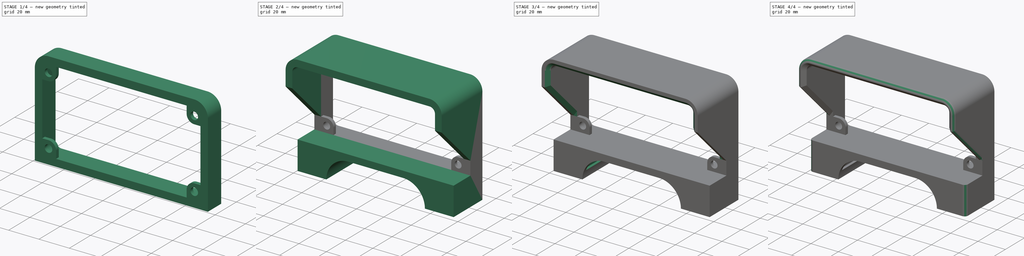
[diagram: build sequence overview — one tinted view per stage of 4, left to right]
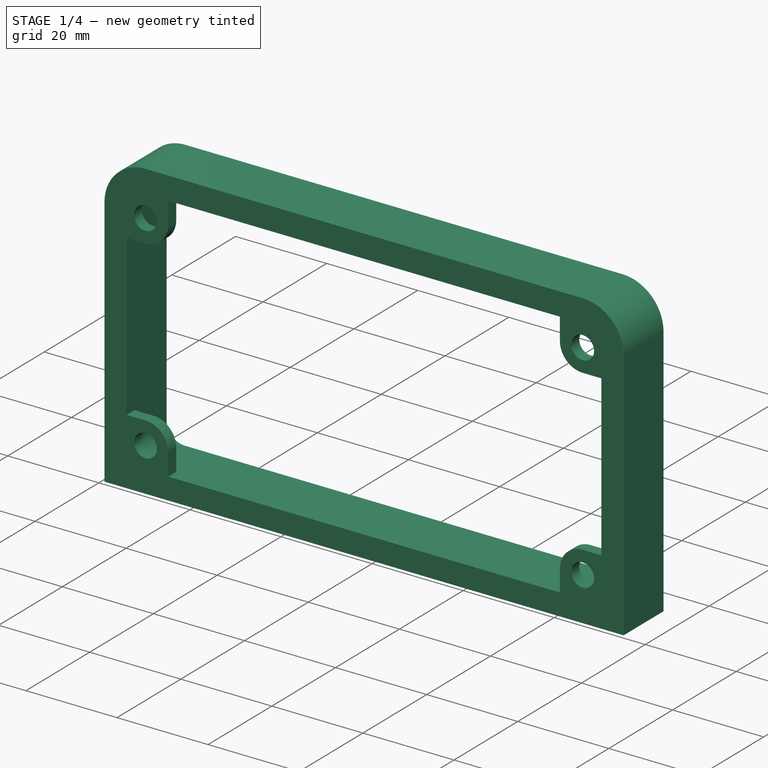
[diagram: stage 1 of 4 — iso view after this stage's code; geometry added in this stage tinted green]
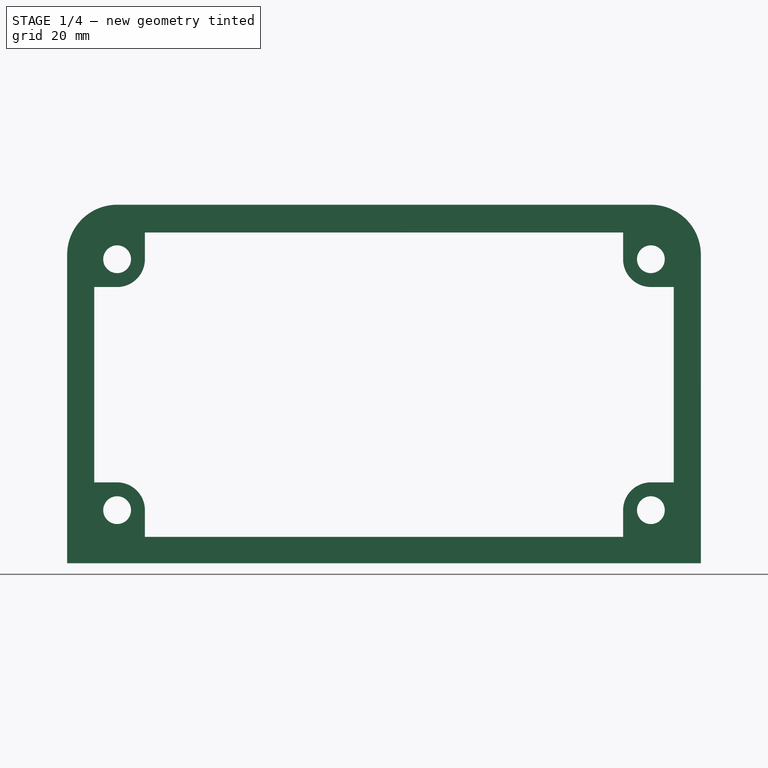
[diagram: stage 1 of 4 — front view after this stage's code; geometry added in this stage tinted green]
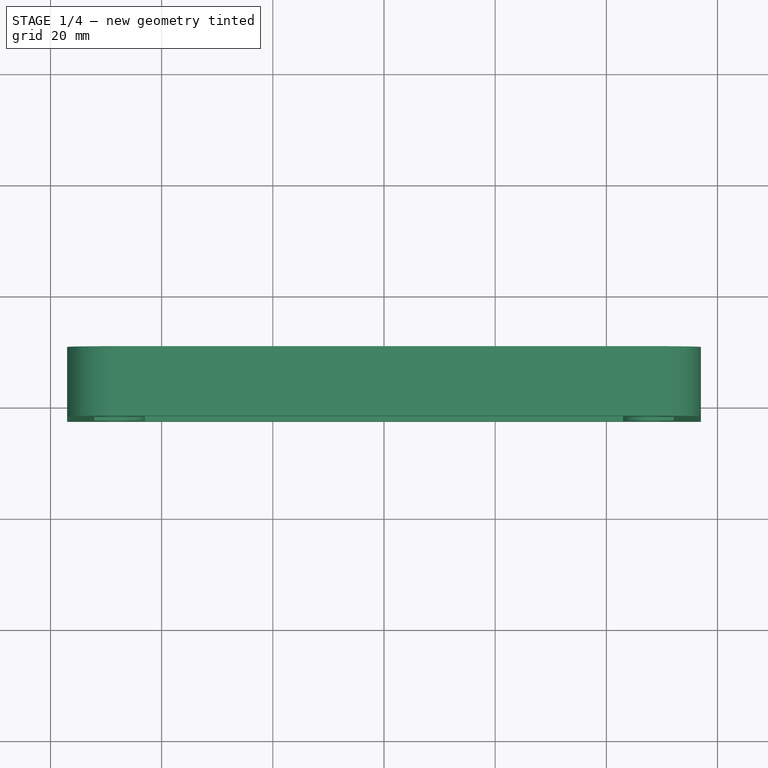
[diagram: stage 1 of 4 — top view after this stage's code; geometry added in this stage tinted green]
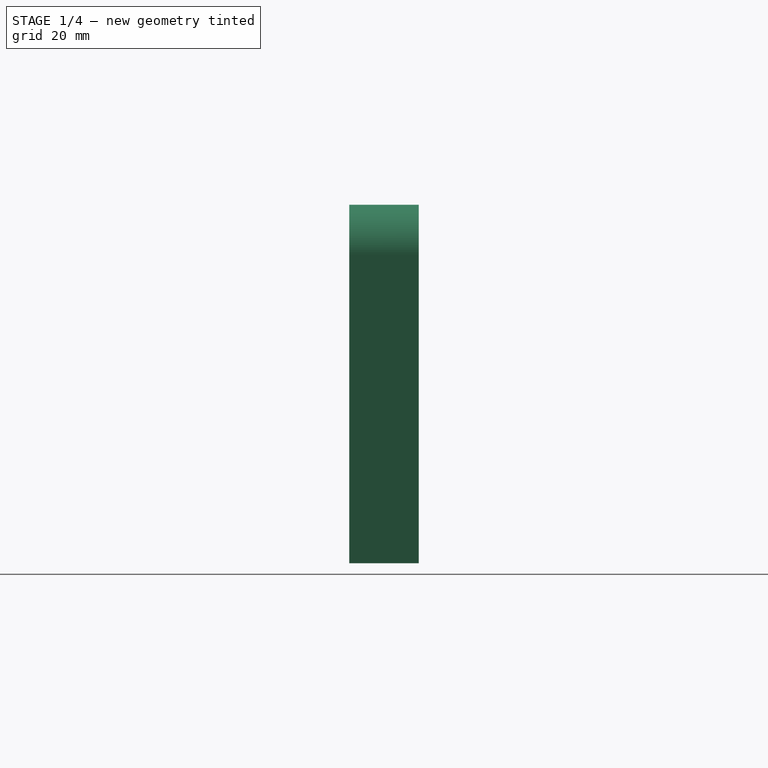
[diagram: stage 1 of 4 — right view after this stage's code; geometry added in this stage tinted green]
FCSTD DOCUMENT  (FreeCAD 1.0R39285 (Git))
Label: endCapHood
License: All rights reserved
LicenseURL: https://en.wikipedia.org/wiki/All_rights_reserved
objects: Sketcher::SketchObject×7, PartDesign::Pad×4, PartDesign::Pocket×2, PartDesign::Fillet×2, PartDesign::Plane×1, PartDesign::Hole×1, PartDesign::Chamfer×1, PartDesign::Body×1
note: 46 computed .brp shape members not serialized (recipe doc carries the construction recipe); baked Part::Feature solids carry a one-line shape summary decoded from their .brp

FEATURE [Sketcher::SketchObject] Sketch
  ArcFitTolerance = 1e-06
  AttachmentSupport = -> [XZ_Plane]
  FullyConstrained = true
  MakeInternals = false
  MapMode = 5
  Placement = pos=(0,0,0) rot=(1,0,0;1.5708rad)
  sketch-geometry (18):
    g0: LineSegment StartX=-48.125 StartY=0 StartZ=0 EndX=48.125 EndY=0 EndZ=0
    g1: LineSegment StartX=52.125 StartY=4 StartZ=0 EndX=52.125 EndY=50.75 EndZ=0
    g2: LineSegment StartX=48.125 StartY=54.75 StartZ=0 EndX=-48.125 EndY=54.75 EndZ=0
    g3: LineSegment StartX=-52.125 StartY=50.75 StartZ=0 EndX=-52.125 EndY=4 EndZ=0
    g4: ArcOfCircle CenterX=-48.125 CenterY=4 CenterZ=0 NormalX=0 NormalY=0 NormalZ=1 AngleXU=0 Radius=4 StartAngle=3.14159 EndAngle=4.71239
    g5: ArcOfCircle CenterX=48.125 CenterY=4 CenterZ=0 NormalX=0 NormalY=0 NormalZ=1 AngleXU=0 Radius=4 StartAngle=4.71239 EndAngle=6.28319
    g6: ArcOfCircle CenterX=48.125 CenterY=50.75 CenterZ=0 NormalX=0 NormalY=0 NormalZ=1 AngleXU=0 Radius=4 StartAngle=0 EndAngle=1.5708
    g7: ArcOfCircle CenterX=-48.125 CenterY=50.75 CenterZ=0 NormalX=0 NormalY=0 NormalZ=1 AngleXU=0 Radius=4 StartAngle=1.5708 EndAngle=3.14159
    g8: GeomPoint [constr] X=-52.125 Y=0 Z=0
    g9: GeomPoint [constr] X=52.125 Y=54.75 Z=0
    g10: LineSegment StartX=-57 StartY=50.75 StartZ=0 EndX=-57 EndY=-4.75 EndZ=0
    g11: LineSegment StartX=-57 StartY=-4.75 StartZ=0 EndX=57 EndY=-4.75 EndZ=0
    g12: LineSegment StartX=57 StartY=-4.75 StartZ=0 EndX=57 EndY=50.75 EndZ=0
    g13: LineSegment StartX=48 StartY=59.75 StartZ=0 EndX=-48 EndY=59.75 EndZ=0
    g14: ArcOfCircle CenterX=-48 CenterY=50.75 CenterZ=0 NormalX=0 NormalY=0 NormalZ=1 AngleXU=0 Radius=9 StartAngle=1.5708 EndAngle=3.14159
    g15: ArcOfCircle CenterX=48 CenterY=50.75 CenterZ=0 NormalX=0 NormalY=0 NormalZ=1 AngleXU=0 Radius=9 StartAngle=0 EndAngle=1.5708
    g16: GeomPoint [constr] X=-57 Y=59.75 Z=0
    g17: GeomPoint [constr] X=57 Y=-4.75 Z=0
  constraints (42):
    c: Tangent(g0,g4) = -1.5708
    c: Tangent(g0,g5) = -1.5708
    c: Tangent(g1,g5) = -1.5708
    c: Tangent(g1,g6) = -1.5708
    c: Tangent(g2,g6) = -1.5708
    c: Tangent(g2,g7) = -1.5708
    c: Tangent(g3,g7) = -1.5708
    c: Tangent(g3,g4) = -1.5708
    c: Horizontal(g0)
    c: Horizontal(g2)
    c: Vertical(g1)
    c: Vertical(g3)
    c: Equal(g4,g5)
    c: Equal(g5,g6)
    c: PointOnObject(g8,g0)
    c: PointOnObject(g8,g3)
    c: PointOnObject(g9,g1)
    c: PointOnObject(g9,g2)
    c: Distance(g1,g3) = 104.25
    c: Distance(g0,g2) = 54.75
    c: Radius(g6) = 4
    c: PointOnObject(g-1,g0)
    c: Tangent(g10,g14) = -1.5708
    c: Tangent(g12,g15) = -1.5708
    c: Tangent(g13,g15) = -1.5708
    c: Tangent(g13,g14) = -1.5708
    c: Vertical(g10)
    c: Vertical(g12)
    c: Horizontal(g11)
    c: Horizontal(g13)
    c: PointOnObject(g16,g10)
    c: PointOnObject(g16,g13)
    c: PointOnObject(g17,g11)
    c: PointOnObject(g17,g12)
    c: Distance(g12,g10) = 114
    c: Distance(g11,g13) = 64.5
    c: Radius(g15) = 9
    c: Distance(g2,g13) = 5
    c: Coincident(g11,g12)
    c: Coincident(g11,g10)
    c: Symmetric(g10,g12,g-2)
    c: Symmetric(g3,g1,g-2)
FEATURE [PartDesign::Pad] Pad
  Direction = (0,-1,2e-16)
  Length = 10
  Length2 = 10
  Placement = pos=(0,0,0) rot=(1,0,0;1.5708rad)
  Profile = -> Sketch
  ReferenceAxis = -> Sketch [N_Axis]
  Refine = true
  Reversed = true
  Suppressed = false
  Type = 0
FEATURE [Sketcher::SketchObject] Sketch001
  ArcFitTolerance = 1e-06
  AttachmentSupport = -> [Pad]
  ExternalGeometry = -> [Pad]
  FullyConstrained = true
  MakeInternals = false
  MapMode = 5
  Placement = pos=(0,6e-15,0) rot=(1,0,0;1.5708rad)
  sketch-geometry (27):
    g0: Circle CenterX=-48.01 CenterY=49.945 CenterZ=0 NormalX=0 NormalY=0 NormalZ=1 AngleXU=0 Radius=2.5
    g1: Circle CenterX=48.01 CenterY=49.945 CenterZ=0 NormalX=0 NormalY=0 NormalZ=1 AngleXU=0 Radius=2.5
    g2: Circle CenterX=-48.01 CenterY=4.805 CenterZ=0 NormalX=0 NormalY=0 NormalZ=1 AngleXU=0 Radius=2.5
    g3: Circle CenterX=48.01 CenterY=4.805 CenterZ=0 NormalX=0 NormalY=0 NormalZ=1 AngleXU=0 Radius=2.5
    g4: ArcOfCircle CenterX=-48.01 CenterY=49.945 CenterZ=0 NormalX=0 NormalY=0 NormalZ=1 AngleXU=0 Radius=5 StartAngle=4.71239 EndAngle=6.28319
    g5: ArcOfCircle CenterX=-48.01 CenterY=4.805 CenterZ=0 NormalX=0 NormalY=0 NormalZ=1 AngleXU=0 Radius=5 StartAngle=0 EndAngle=1.5708
    g6: ArcOfCircle CenterX=48.01 CenterY=4.805 CenterZ=0 NormalX=0 NormalY=0 NormalZ=1 AngleXU=0 Radius=5 StartAngle=1.5708 EndAngle=3.14159
    g7: ArcOfCircle CenterX=48.01 CenterY=49.945 CenterZ=0 NormalX=0 NormalY=0 NormalZ=1 AngleXU=0 Radius=5 StartAngle=3.14159 EndAngle=4.71239
    g8: LineSegment [constr] StartX=-57 StartY=27.375 StartZ=0 EndX=57 EndY=27.375 EndZ=0
    g9: LineSegment StartX=-43.01 StartY=49.945 StartZ=0 EndX=-43.01 EndY=54.75 EndZ=0
    g10: LineSegment StartX=-48.01 StartY=44.945 StartZ=0 EndX=-52.125 EndY=44.945 EndZ=0
    g11: LineSegment StartX=-48.01 StartY=9.805 StartZ=0 EndX=-52.125 EndY=9.805 EndZ=0
    g12: LineSegment StartX=-43.01 StartY=4.805 StartZ=0 EndX=-43.01 EndY=0 EndZ=0
    g13: LineSegment StartX=43.01 StartY=4.805 StartZ=0 EndX=43.01 EndY=0 EndZ=0
    g14: LineSegment StartX=48.01 StartY=9.805 StartZ=0 EndX=52.125 EndY=9.805 EndZ=0
    g15: LineSegment StartX=48.01 StartY=44.945 StartZ=0 EndX=52.125 EndY=44.945 EndZ=0
    g16: LineSegment StartX=43.01 StartY=49.945 StartZ=0 EndX=43.01 EndY=54.75 EndZ=0
    g17: LineSegment StartX=43.01 StartY=54.75 StartZ=0 EndX=-43.01 EndY=54.75 EndZ=0
    g18: LineSegment StartX=-52.125 StartY=44.945 StartZ=0 EndX=-52.125 EndY=9.805 EndZ=0
    g19: LineSegment StartX=-43.01 StartY=0 StartZ=0 EndX=43.01 EndY=0 EndZ=0
    g20: LineSegment StartX=52.125 StartY=9.805 StartZ=0 EndX=52.125 EndY=44.945 EndZ=0
    g21: LineSegment StartX=57 StartY=-4.75 StartZ=0 EndX=57 EndY=50.75 EndZ=0
    g22: LineSegment StartX=48 StartY=59.75 StartZ=0 EndX=-48 EndY=59.75 EndZ=0
    g23: LineSegment StartX=-57 StartY=50.75 StartZ=0 EndX=-57 EndY=-4.75 EndZ=0
    g24: LineSegment StartX=-57 StartY=-4.75 StartZ=0 EndX=57 EndY=-4.75 EndZ=0
    g25: ArcOfCircle CenterX=48 CenterY=50.75 CenterZ=0 NormalX=0 NormalY=0 NormalZ=1 AngleXU=0 Radius=9 StartAngle=0 EndAngle=1.5708
    g26: ArcOfCircle CenterX=-48 CenterY=50.75 CenterZ=0 NormalX=0 NormalY=0 NormalZ=1 AngleXU=0 Radius=9 StartAngle=1.5708 EndAngle=3.14159
  constraints (64):
    c: DistanceY(g2,g0) = 45.14
    c: DistanceX(g0,g1) = 96.02
    c: Symmetric(g0,g1,g-2)
    c: Symmetric(g2,g3,g-2)
    c: Coincident(g4,g0)
    c: Radius(g4) = 5
    c: Coincident(g5,g2)
    c: Coincident(g6,g3)
    c: Coincident(g7,g1)
    c: Equal(g0,g1)
    c: Symmetric(g2,g0,g8)
    c: PointOnObject(g8,g-11)
    c: PointOnObject(g8,g-7)
    c: Symmetric(g-5,g-3,g8)
    c: Diameter(g0) = 5
    c: Equal(g3,g0)
    c: Equal(g2,g0)
    c: Equal(g7,g4)
    c: Equal(g6,g4)
    c: Equal(g5,g4)
    c: PointOnObject(g9,g-3)
    c: Vertical(g9)
    c: PointOnObject(g10,g-12)
    c: PointOnObject(g11,g-12)
    c: PointOnObject(g12,g-5)
    c: Vertical(g12)
    c: PointOnObject(g13,g-5)
    c: Vertical(g13)
    c: PointOnObject(g14,g-4)
    c: PointOnObject(g15,g-4)
    c: Horizontal(g15)
    c: PointOnObject(g16,g-3)
    c: Coincident(g17,g16)
    c: Coincident(g17,g9)
    c: Coincident(g18,g10)
    c: Coincident(g18,g11)
    c: Coincident(g19,g12)
    c: Coincident(g19,g13)
    c: Coincident(g20,g14)
    c: Coincident(g20,g15)
    c: Coincident(g21,g-7)
    c: Coincident(g21,g-8)
    c: Coincident(g24,g23)
    c: Coincident(g24,g21)
    c: Horizontal(g24)
    c: Parallel(g10,g11)
    c: Parallel(g14,g15)
    c: Perpendicular(g10,g18)
    c: Tangent(g11,g5) = -1.5708
    c: Tangent(g10,g4) = 1.5708
    c: Tangent(g9,g4) = -1.5708
    c: Tangent(g12,g5) = 1.5708
    c: Tangent(g13,g6) = -1.5708
    c: Tangent(g14,g6) = 1.5708
    c: Tangent(g15,g7) = -1.5708
    c: Tangent(g16,g7) = 1.5708
    c: Parallel(g16,g9)
    c: Tangent(g25,g22) = -1.5708
    c: Tangent(g25,g21) = -1.5708
    c: Coincident(g22,g-9)
    c: Tangent(g26,g-10)
    c: Coincident(g23,g-11)
    c: Tangent(g26,g23) = -1.5708
    c: Tangent(g26,g22) = -1.5708
FEATURE [PartDesign::Pad] Pad001
  BaseFeature = -> Pad
  Direction = (0,-1,2e-16)
  Length = 2.5
  Length2 = 10
  Placement = pos=(0,0,0) rot=(1,0,0;1.5708rad)
  Profile = -> Sketch001
  ReferenceAxis = -> Sketch001 [N_Axis]
  Refine = true
  Suppressed = false
  Type = 0
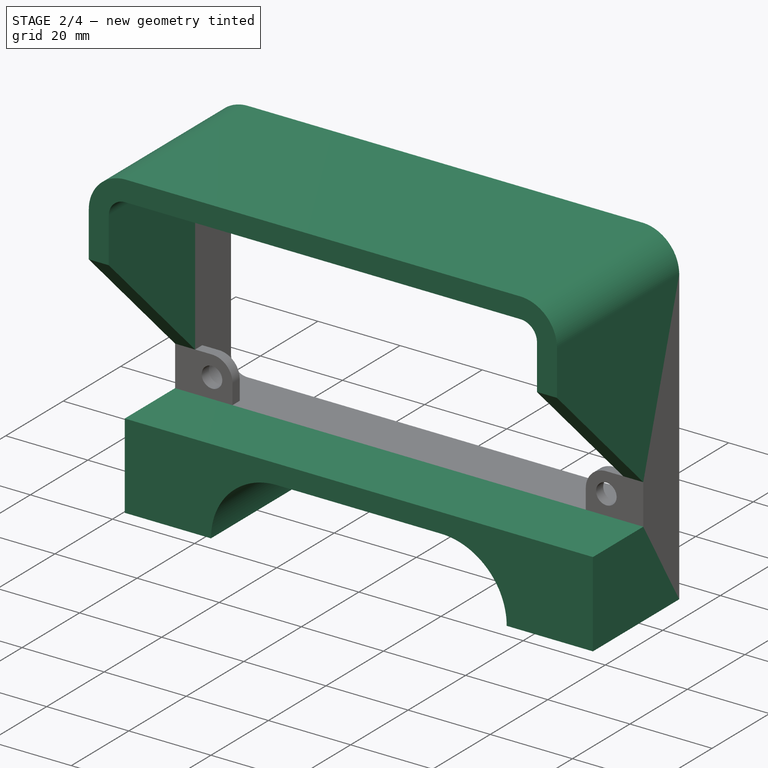
[diagram: stage 2 of 4 — iso view after this stage's code; geometry added in this stage tinted green]
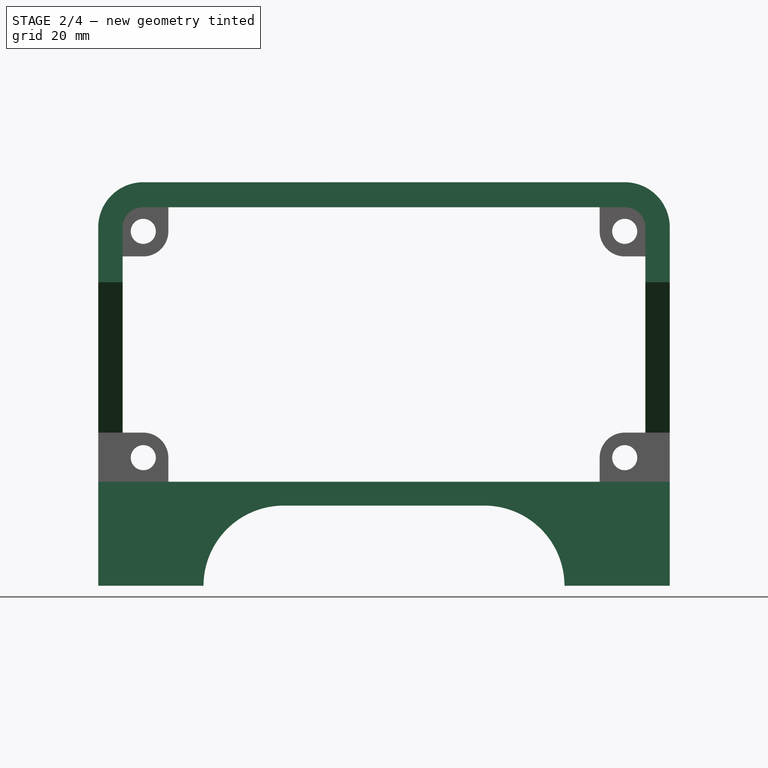
[diagram: stage 2 of 4 — front view after this stage's code; geometry added in this stage tinted green]
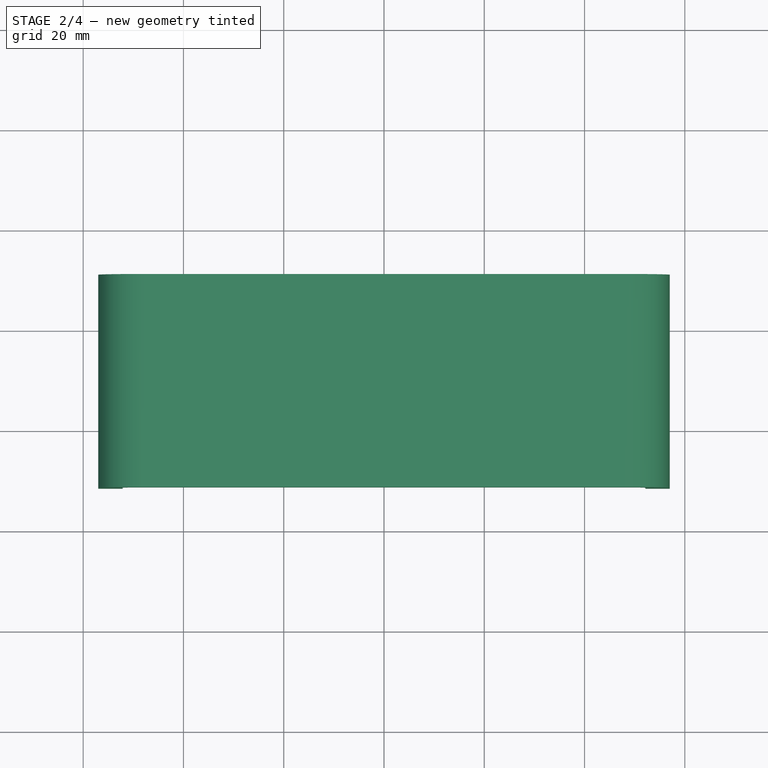
[diagram: stage 2 of 4 — top view after this stage's code; geometry added in this stage tinted green]
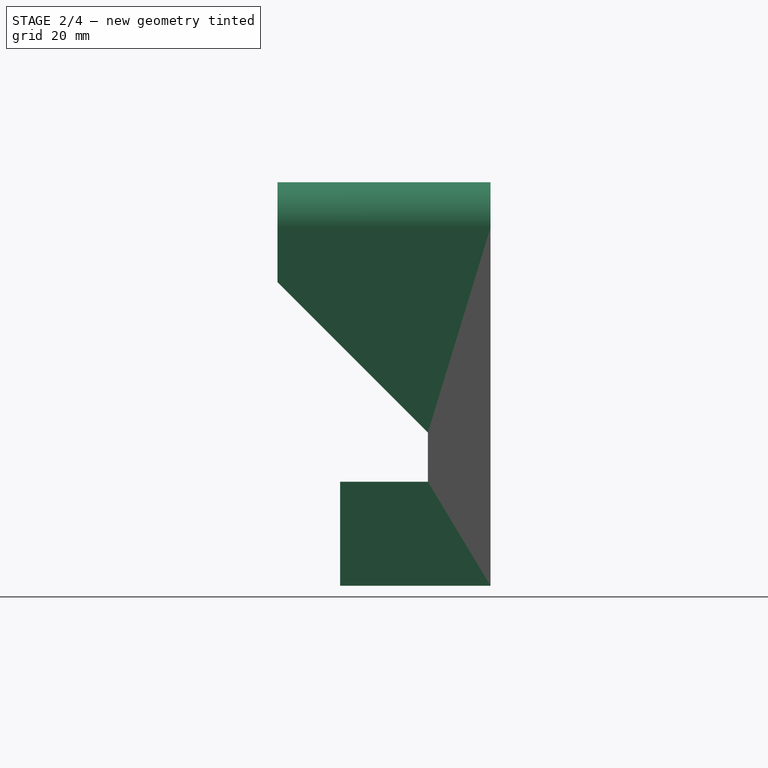
[diagram: stage 2 of 4 — right view after this stage's code; geometry added in this stage tinted green]
FEATURE [Sketcher::SketchObject] Sketch002
  ArcFitTolerance = 1e-06
  AttachmentSupport = -> [Pad001]
  ExternalGeometry = -> [Pad001]
  FullyConstrained = true
  MakeInternals = false
  MapMode = 5
  Placement = pos=(0,-2.5,0) rot=(1,0,0;1.5708rad)
  sketch-geometry (12):
    g0: ArcOfCircle CenterX=-48 CenterY=50.75 CenterZ=0 NormalX=0 NormalY=0 NormalZ=1 AngleXU=0 Radius=9 StartAngle=1.5708 EndAngle=3.14159
    g1: ArcOfCircle CenterX=48.125 CenterY=50.75 CenterZ=0 NormalX=0 NormalY=0 NormalZ=1 AngleXU=0 Radius=4 StartAngle=0 EndAngle=1.5708
    g2: LineSegment StartX=-48 StartY=59.75 StartZ=0 EndX=48 EndY=59.75 EndZ=0
    g3: LineSegment StartX=52.125 StartY=9.805 StartZ=0 EndX=57 EndY=9.805 EndZ=0
    g4: LineSegment StartX=-52.125 StartY=9.805 StartZ=0 EndX=-57 EndY=9.805 EndZ=0
    g5: LineSegment StartX=-57 StartY=9.805 StartZ=0 EndX=-57 EndY=50.75 EndZ=0
    g6: ArcOfCircle CenterX=48 CenterY=50.75 CenterZ=0 NormalX=0 NormalY=0 NormalZ=1 AngleXU=0 Radius=9 StartAngle=-9e-16 EndAngle=1.5708
    g7: LineSegment StartX=57 StartY=50.75 StartZ=0 EndX=57 EndY=9.805 EndZ=0
    g8: LineSegment StartX=-48.125 StartY=54.75 StartZ=0 EndX=48.125 EndY=54.75 EndZ=0
    g9: LineSegment StartX=52.125 StartY=50.75 StartZ=0 EndX=52.125 EndY=9.805 EndZ=0
    g10: LineSegment StartX=-52.125 StartY=50.75 StartZ=0 EndX=-52.125 EndY=9.805 EndZ=0
    g11: ArcOfCircle CenterX=-48.125 CenterY=50.75 CenterZ=0 NormalX=0 NormalY=0 NormalZ=1 AngleXU=0 Radius=4 StartAngle=1.5708 EndAngle=3.14159
  constraints (28):
    c: Horizontal(g3)
    c: Horizontal(g4)
    c: Coincident(g5,g4)
    c: Coincident(g5,g0)
    c: Tangent(g2,g0) = 1.5708
    c: Coincident(g2,g6)
    c: Tangent(g7,g6) = 1.5708
    c: Coincident(g7,g3)
    c: PointOnObject(g4,g-9)
    c: Coincident(g-9,g0)
    c: Coincident(g0,g-8)
    c: Coincident(g2,g-7)
    c: Coincident(g6,g-6)
    c: PointOnObject(g3,g-5)
    c: Horizontal(g8)
    c: Coincident(g9,g3)
    c: Vertical(g9)
    c: Coincident(g10,g4)
    c: Vertical(g10)
    c: Tangent(g11,g8) = 1.5708
    c: Coincident(g10,g11)
    c: Tangent(g11,g10,g10) = -1.5708
    c: Equal(g11,g1)
    c: Tangent(g8,g1) = 1.5708
    c: Tangent(g9,g1) = 1.5708
    c: Coincident(g3,g-4)
    c: Coincident(g4,g-10)
    c: Coincident(g1,g-12)
FEATURE [PartDesign::Pad] Pad002
  BaseFeature = -> Pad001
  Direction = (0,-1,2e-16)
  Length = 30
  Length2 = 10
  Placement = pos=(0,0,0) rot=(1,0,0;1.5708rad)
  Profile = -> Sketch002
  ReferenceAxis = -> Sketch002 [N_Axis]
  Refine = true
  Suppressed = false
  Type = 0
FEATURE [Sketcher::SketchObject] Sketch003
  ArcFitTolerance = 1e-06
  AttachmentSupport = -> [Pad002]
  ExternalGeometry = -> [Pad002]
  FullyConstrained = true
  MakeInternals = false
  MapMode = 5
  Placement = pos=(0,10,0) rot=(-1,0,0;1.5708rad)
  sketch-geometry (8):
    g0: LineSegment StartX=-57 StartY=0 StartZ=0 EndX=-57 EndY=20.75 EndZ=0
    g1: LineSegment StartX=57 StartY=0 StartZ=0 EndX=57 EndY=20.75 EndZ=0
    g2: LineSegment StartX=57 StartY=20.75 StartZ=0 EndX=36 EndY=20.75 EndZ=0
    g3: ArcOfCircle CenterX=20 CenterY=20.75 CenterZ=0 NormalX=0 NormalY=0 NormalZ=1 AngleXU=0 Radius=16 StartAngle=4.71239 EndAngle=6.28319
    g4: LineSegment StartX=-57 StartY=0 StartZ=0 EndX=57 EndY=0 EndZ=0
    g5: LineSegment StartX=-57 StartY=20.75 StartZ=0 EndX=-36 EndY=20.75 EndZ=0
    g6: ArcOfCircle CenterX=-20 CenterY=20.75 CenterZ=0 NormalX=0 NormalY=0 NormalZ=1 AngleXU=0 Radius=16 StartAngle=3.14159 EndAngle=4.71239
    g7: LineSegment StartX=-20 StartY=4.75 StartZ=0 EndX=20 EndY=4.75 EndZ=0
  constraints (23):
    c: Vertical(g0)
    c: Vertical(g1)
    c: Horizontal(g2)
    c: Coincident(g3,g2)
    c: Distance(g2,g-2) = 36
    c: PointOnObject(g3,g2)
    c: PointOnObject(g1,g-1)
    c: PointOnObject(g0,g-1)
    c: Coincident(g4,g0)
    c: Coincident(g4,g1)
    c: Horizontal(g5)
    c: Coincident(g6,g5)
    c: PointOnObject(g6,g5)
    c: Symmetric(g5,g2,g-2)
    c: Coincident(g7,g6)
    c: Coincident(g1,g2)
    c: Coincident(g5,g0)
    c: PointOnObject(g3,g-3)
    c: Tangent(g7,g3) = -1.5708
    c: Tangent(g6,g-3) = -1.5708
    c: PointOnObject(g-3,g0)
    c: PointOnObject(g-3,g1)
    c: Distance(g-3,g5) = 16
FEATURE [PartDesign::Pad] Pad003
  BaseFeature = -> Pad002
  Direction = (0,1,2e-16)
  Length = 30
  Length2 = 10
  Placement = pos=(0,0,0) rot=(1,0,0;1.5708rad)
  Profile = -> Sketch003
  ReferenceAxis = -> Sketch003 [N_Axis]
  Refine = true
  Reversed = true
  Suppressed = false
  Type = 0
FEATURE [Sketcher::SketchObject] Sketch004
  ArcFitTolerance = 1e-06
  AttachmentSupport = -> [Pad003]
  ExternalGeometry = -> [Pad003]
  FullyConstrained = true
  MakeInternals = false
  MapMode = 5
  Placement = pos=(-57,-2.13024e-11,-7.0608e-12) rot=(0.707107,0,-0.707107;3.14159rad)
  sketch-geometry (3):
    g0: LineSegment StartX=-9.805 StartY=2.5 StartZ=0 EndX=-39.805 EndY=32.5 EndZ=0
    g1: LineSegment StartX=-39.805 StartY=32.5 StartZ=0 EndX=-9.805 EndY=32.5 EndZ=0
    g2: LineSegment StartX=-9.805 StartY=32.5 StartZ=0 EndX=-9.805 EndY=2.5 EndZ=0
  constraints (7):
    c: Coincident(g1,g0)
    c: Coincident(g2,g1)
    c: Coincident(g2,g0)
    c: PointOnObject(g0,g-3)
    c: Coincident(g0,g-4)
    c: Angle(g2,g0) = 0.785398
    c: Coincident(g1,g-4)
FEATURE [PartDesign::Pocket] Pocket
  BaseFeature = -> Pad003
  Direction = (1,3.737e-13,1.239e-13)
  Length = 5
  Length2 = 5
  Placement = pos=(0,0,0) rot=(1,0,0;1.5708rad)
  Profile = -> Sketch004
  ReferenceAxis = -> Sketch004 [N_Axis]
  Refine = true
  Suppressed = false
  Type = 1
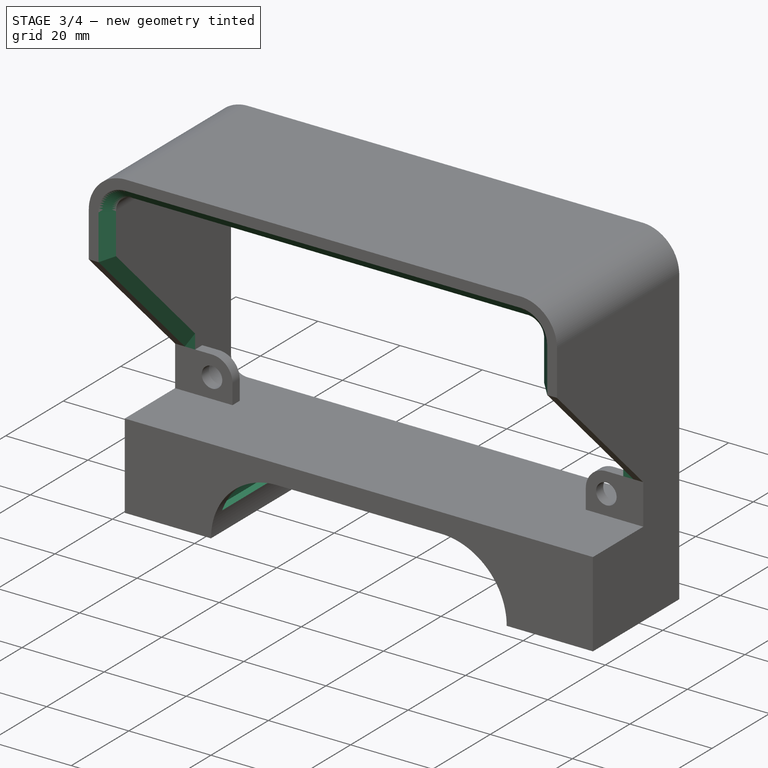
[diagram: stage 3 of 4 — iso view after this stage's code; geometry added in this stage tinted green]
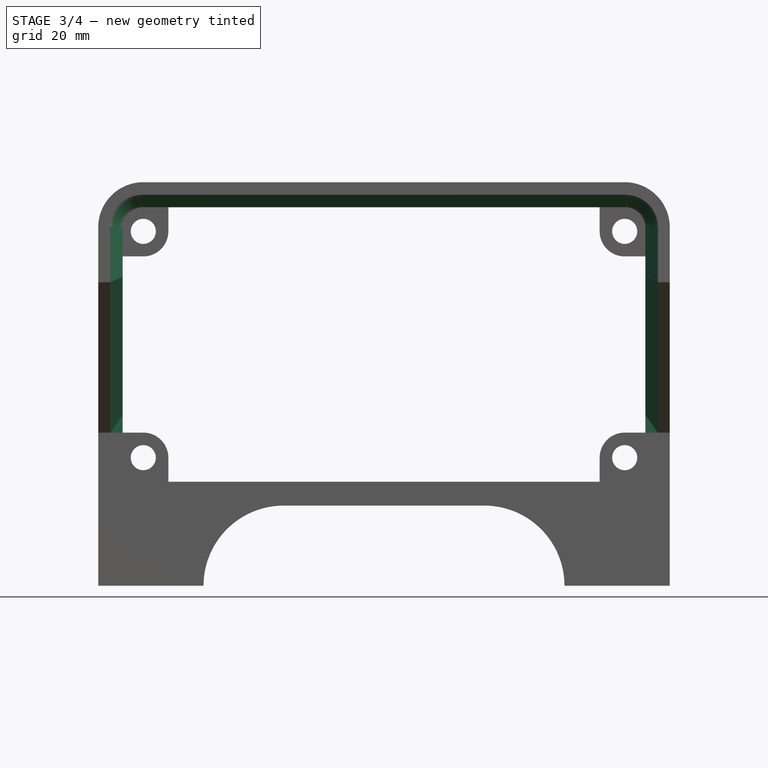
[diagram: stage 3 of 4 — front view after this stage's code; geometry added in this stage tinted green]
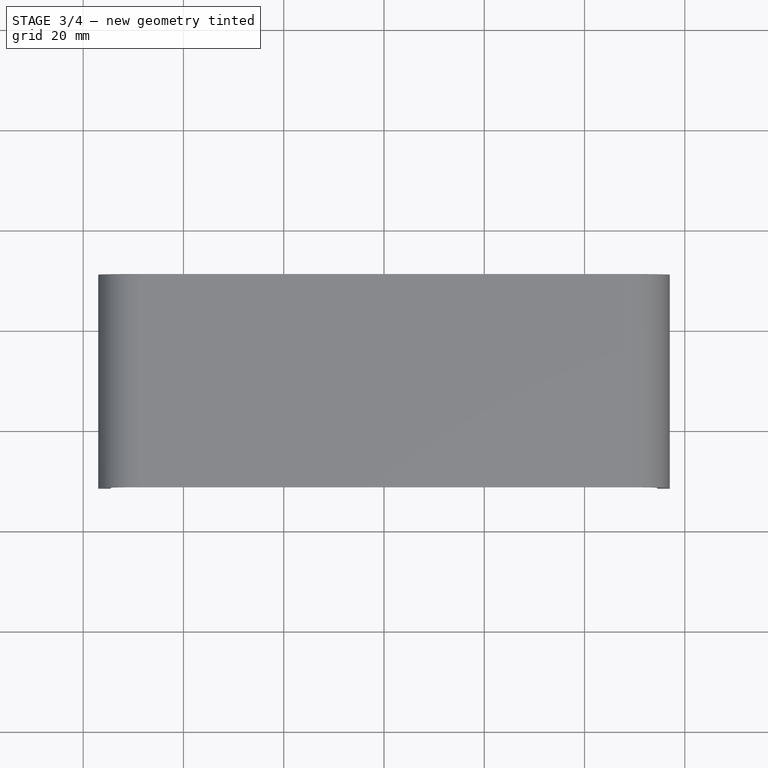
[diagram: stage 3 of 4 — top view after this stage's code; geometry added in this stage tinted green]
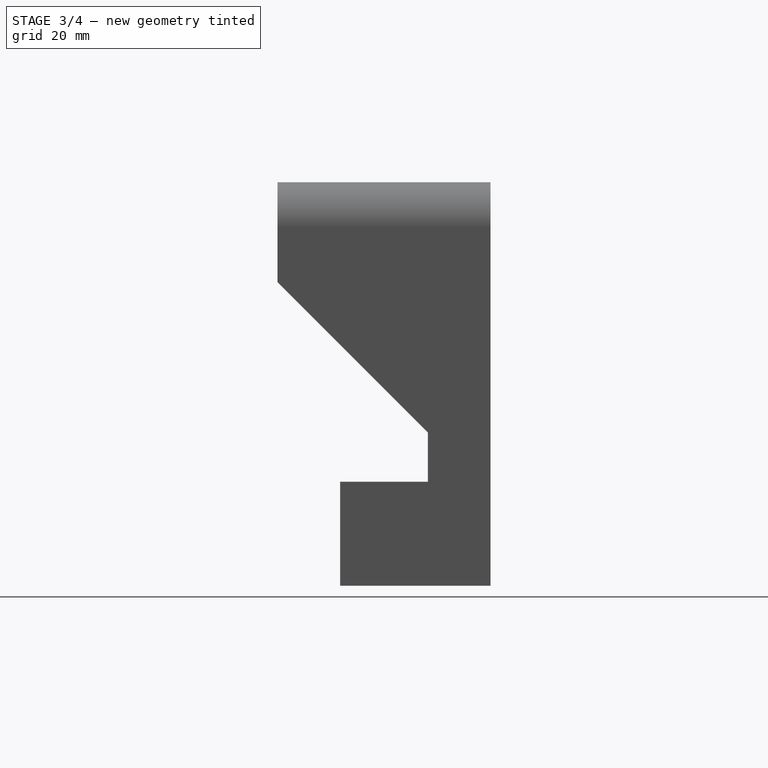
[diagram: stage 3 of 4 — right view after this stage's code; geometry added in this stage tinted green]
FEATURE [PartDesign::Plane] DatumPlane
  AttachmentOffset = pos=(0,0,-15) rot=(0,0,1;0rad)
  AttachmentSupport = -> [Pocket]
  Length = 133.659
  MapMode = 5
  Placement = pos=(0,-5,-4.4e-15) rot=(-1,0,0;1.5708rad)
  ResizeMode = 0
  Width = 104.409
FEATURE [Sketcher::SketchObject] Sketch007
  ArcFitTolerance = 1e-06
  AttachmentSupport = -> [DatumPlane]
  FullyConstrained = true
  MakeInternals = false
  MapMode = 5
  Placement = pos=(0,-5,-4.4e-15) rot=(-1,0,0;1.5708rad)
  sketch-geometry (6):
    g0: ArcOfCircle CenterX=-24.8 CenterY=16.2 CenterZ=0 NormalX=0 NormalY=0 NormalZ=1 AngleXU=0 Radius=12 StartAngle=3.22886 EndAngle=4.62512
    g1: LineSegment StartX=-24.8 StartY=16.2 StartZ=0 EndX=-36.7543 EndY=15.1541 EndZ=0
    g2: LineSegment StartX=-25.8459 StartY=4.24566 StartZ=0 EndX=-24.8 EndY=16.2 EndZ=0
    g3: ArcOfCircle CenterX=24.8 CenterY=16.2 CenterZ=0 NormalX=0 NormalY=0 NormalZ=1 AngleXU=0 Radius=12 StartAngle=4.79966 EndAngle=6.19592
    g4: LineSegment StartX=25.8459 StartY=4.24566 StartZ=0 EndX=24.8 EndY=16.2 EndZ=0
    g5: LineSegment StartX=24.8 StartY=16.2 StartZ=0 EndX=36.7543 EndY=15.1541 EndZ=0
  constraints (15):
    c: Coincident(g0,g-3)
    c: Radius(g0) = 12
    c: Coincident(g1,g0)
    c: Coincident(g1,g0)
    c: Coincident(g2,g0)
    c: Coincident(g2,g0)
    c: Angle(g1,g2) = 1.39626
    c: Angle(g-4,g1) = 0.0872665
    c: Coincident(g3,g-5)
    c: Coincident(g4,g3)
    c: Coincident(g4,g3)
    c: Coincident(g5,g3)
    c: Coincident(g5,g3)
    c: Symmetric(g3,g0,g-2)
    c: Angle(g4,g5) = 1.39626
FEATURE [PartDesign::Pocket] Pocket001
  BaseFeature = -> Pocket
  Direction = (0,-1,-2e-16)
  Length = 25
  Length2 = 5
  Midplane = true
  Placement = pos=(0,0,0) rot=(1,0,0;1.5708rad)
  Profile = -> Sketch007
  ReferenceAxis = -> Sketch007 [N_Axis]
  Refine = true
  Suppressed = false
  Type = 0
FEATURE [Sketcher::SketchObject] Sketch008
  ArcFitTolerance = 1e-06
  AttachmentSupport = -> [Pocket001]
  ExternalGeometry = -> [Pocket001]
  FullyConstrained = true
  MakeInternals = false
  MapMode = 5
  Placement = pos=(0,4.6e-15,-20.75) rot=(1,0,0;3.14159rad)
  sketch-geometry (2):
    g0: Circle CenterX=-46.5 CenterY=5 CenterZ=0 NormalX=0 NormalY=0 NormalZ=1 AngleXU=0 Radius=2.75
    g1: Circle CenterX=46.5 CenterY=5 CenterZ=0 NormalX=0 NormalY=0 NormalZ=1 AngleXU=0 Radius=2.75
  constraints (5):
    c: Diameter(g0) = 5.5
    c: Distance(g0,g-3) = 10.5
    c: Distance(g0,g-4) = 15
    c: Equal(g1,g0)
    c: Symmetric(g1,g0,g-2)
FEATURE [PartDesign::Hole] Hole
  BaseFeature = -> Pocket001
  CustomThreadClearance = 0
  Depth = 7.5
  DepthType = 0
  Diameter = 5.5
  DrillForDepth = false
  DrillPoint = 0
  DrillPointAngle = 118
  HoleCutCountersinkAngle = 90
  HoleCutCustomValues = false
  HoleCutDepth = 0
  HoleCutDiameter = 6.1
  HoleCutType = 0
  ModelThread = false
  Placement = pos=(0,0,0) rot=(1,0,0;1.5708rad)
  Profile = -> Sketch008
  Refine = true
  Suppressed = false
  Tapered = true
  TaperedAngle = 82
  ThreadClass = 0
  ThreadDepth = 7.5
  ThreadDepthType = 0
  ThreadDirection = 0
  ThreadFit = 0
  ThreadSize = 0
  ThreadType = 0
  Threaded = false
  UseCustomThreadClearance = false
FEATURE [PartDesign::Chamfer] Chamfer
  Angle = 45
  Base = -> Hole [Edge80,Edge52,Edge44,Edge13,Edge51,Edge50,Edge76]
  BaseFeature = -> Hole
  ChamferType = 0
  FlipDirection = false
  Placement = pos=(0,0,0) rot=(1,0,0;1.5708rad)
  Refine = true
  Size = 2.5
  Size2 = 1
  SupportTransform = false
  Suppressed = false
  UseAllEdges = false
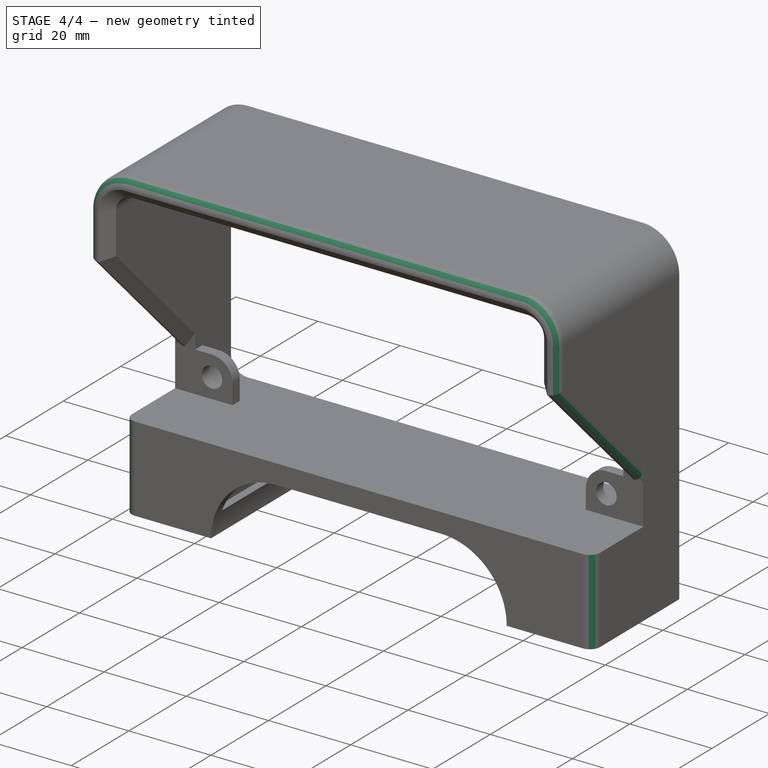
[diagram: stage 4 of 4 — iso view after this stage's code; geometry added in this stage tinted green]
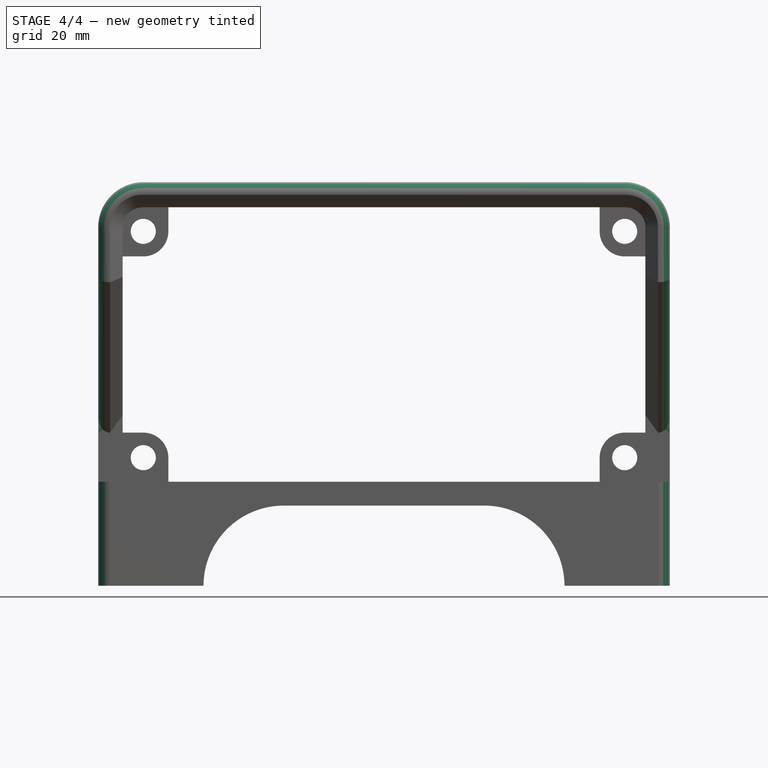
[diagram: stage 4 of 4 — front view after this stage's code; geometry added in this stage tinted green]
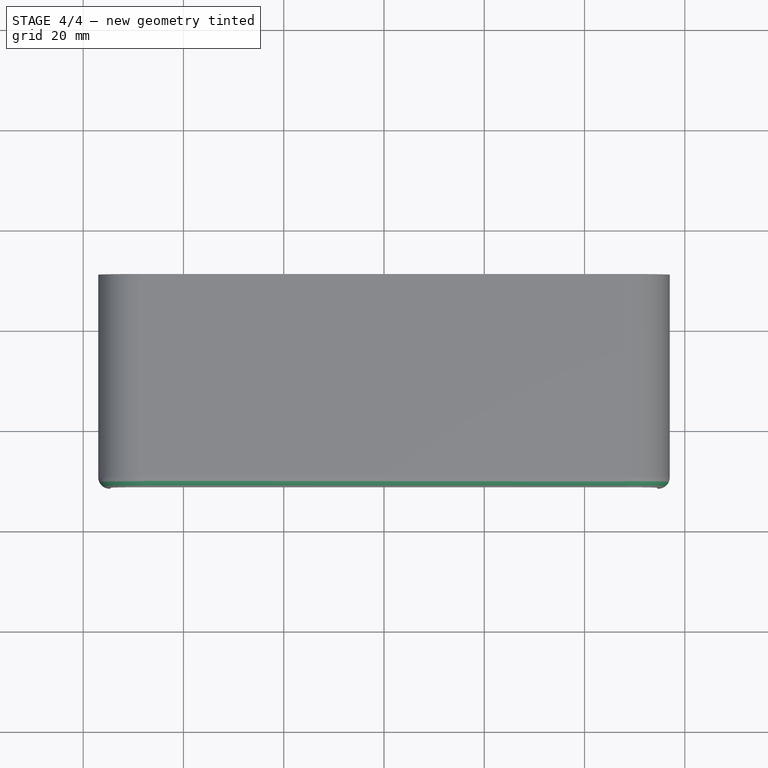
[diagram: stage 4 of 4 — top view after this stage's code; geometry added in this stage tinted green]
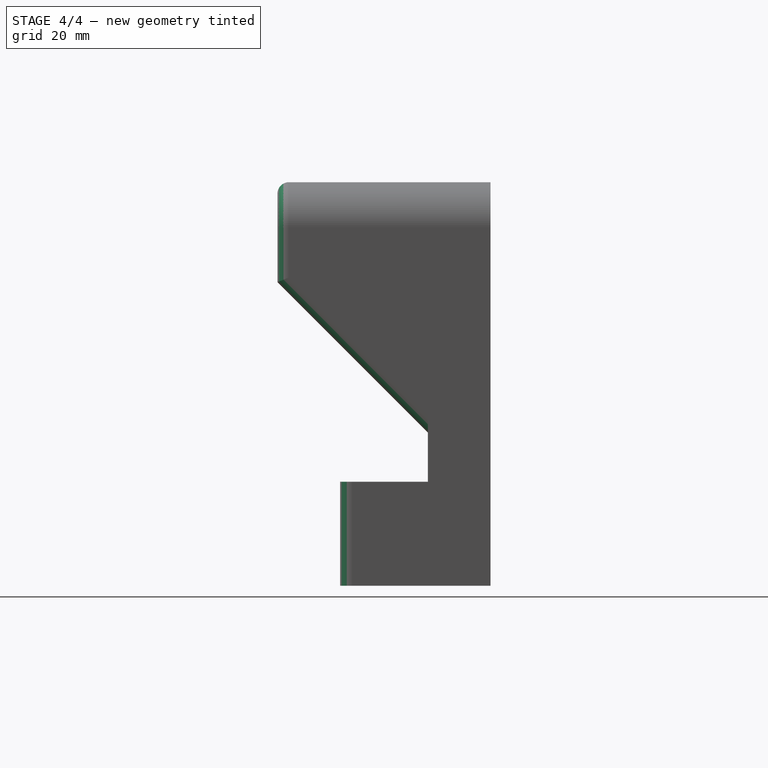
[diagram: stage 4 of 4 — right view after this stage's code; geometry added in this stage tinted green]
FEATURE [PartDesign::Fillet] Fillet
  Base = -> Chamfer [Edge125,Edge78,Edge79,Edge80,Edge81,Edge83,Edge101]
  BaseFeature = -> Chamfer
  Placement = pos=(0,0,0) rot=(1,0,0;1.5708rad)
  Radius = 2.3
  Refine = true
  SupportTransform = false
  Suppressed = false
  UseAllEdges = false
FEATURE [PartDesign::Fillet] Fillet001
  Base = -> Fillet [Edge91,Edge56]
  BaseFeature = -> Fillet
  Placement = pos=(0,0,0) rot=(1,0,0;1.5708rad)
  Radius = 2.5
  Refine = true
  SupportTransform = false
  Suppressed = false
  UseAllEdges = false
FEATURE [PartDesign::Body] Body
  AllowCompound = false
  Group = -> [Sketch,Pad,Sketch001,Pad001,Sketch002,Pad002,Sketch003,Pad003,Sketch004,Pocket,DatumPlane,Sketch007,Pocket001,Sketch008,Hole,Chamfer,Fillet,Fillet001]
  Origin = -> Origin
  Tip = -> Fillet001
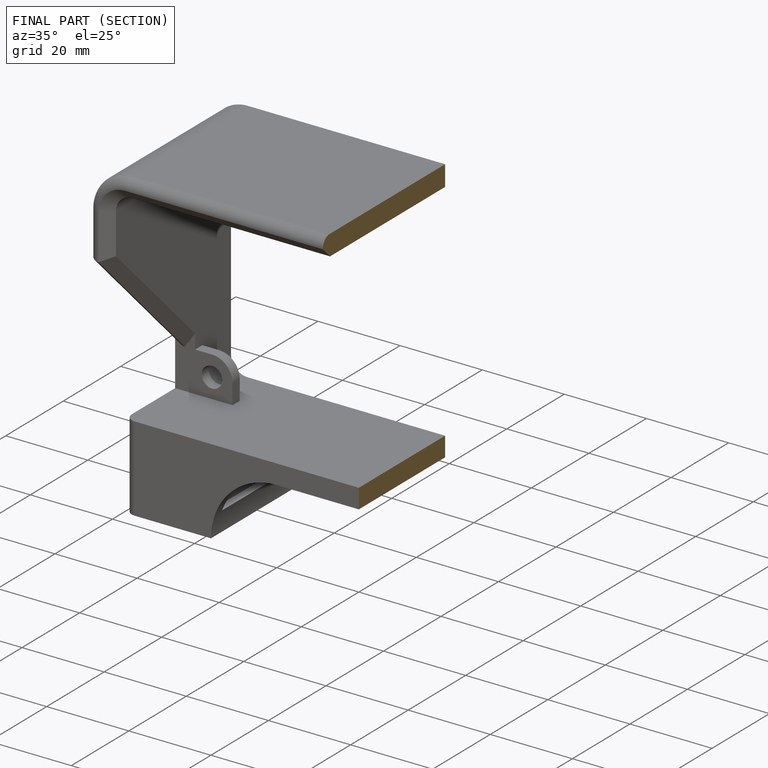
[diagram: finished part — half-section view (interior)]
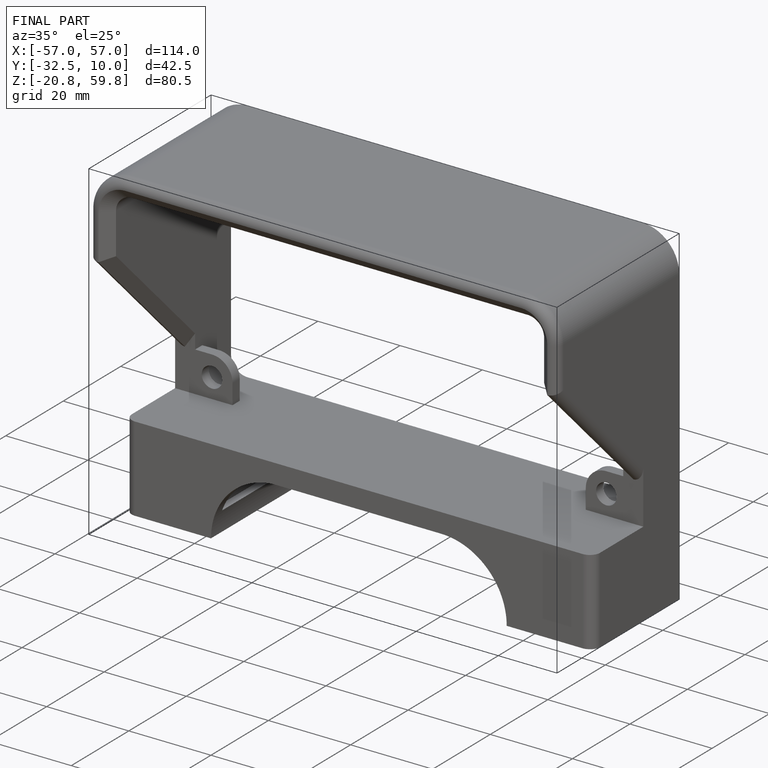
[diagram: finished part — iso view with bounding-box wireframe]
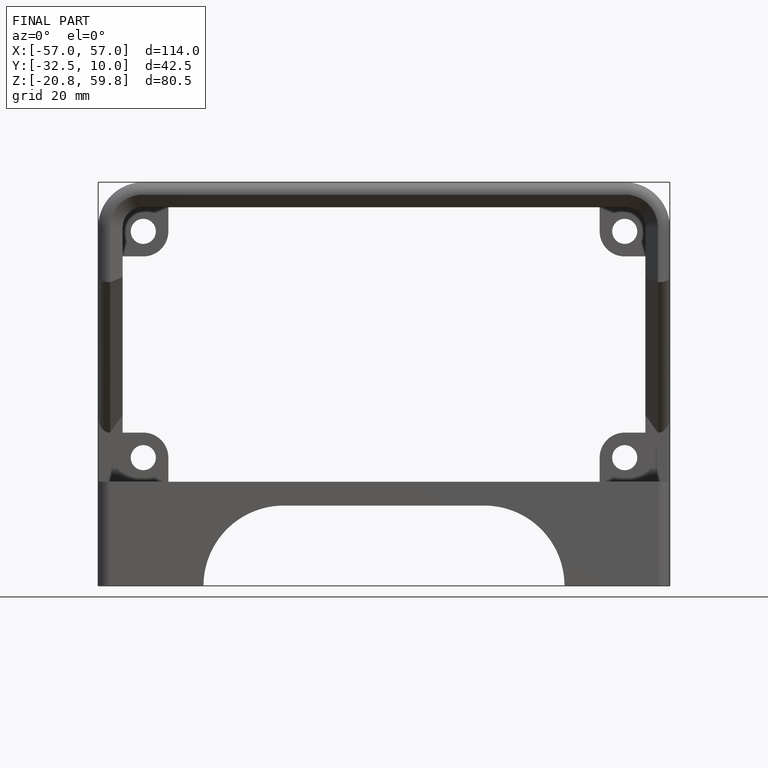
[diagram: finished part — front view with bounding-box wireframe]
